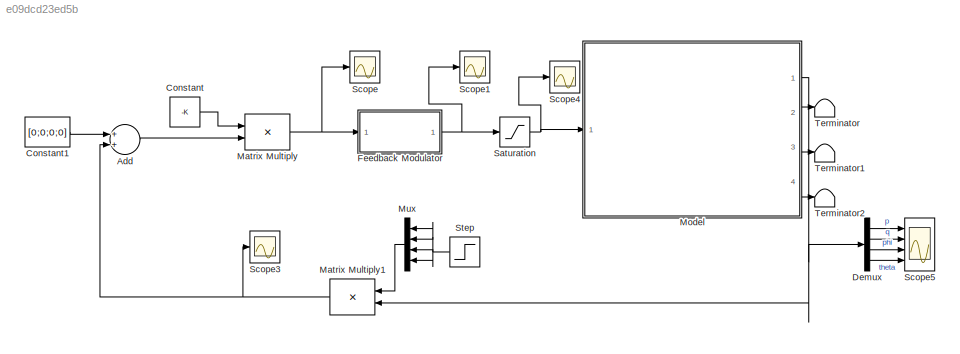
MODEL slx_e09dcd23ed5b
KIND model
CONFIG AbsTol = auto
CONFIG EnableMultiTasking = off
CONFIG FixedStep = auto
CONFIG MaxStep = auto
CONFIG MinStep = auto
CONFIG RelTol = 1e-3
CONFIG SampleTimeConstraint = Unconstrained
CONFIG Solver = VariableStepAuto
CONFIG SolverName = VariableStepAuto
CONFIG StartTime = 0.0
CONFIG StopTime = 30
BLOCK [Sum] Add
  InputSameDT = off
  OutDataTypeStr = Inherit: Inherit via internal rule
  Ports = [2, 1]
  SaturateOnIntegerOverflow = off
BLOCK [Constant] Constant
  Value = -K
BLOCK [Constant] Constant1
  Value = [0;0;0;0]
BLOCK [Demux] Demux
  DisplayOption = bar
  Ports = [1, 4]
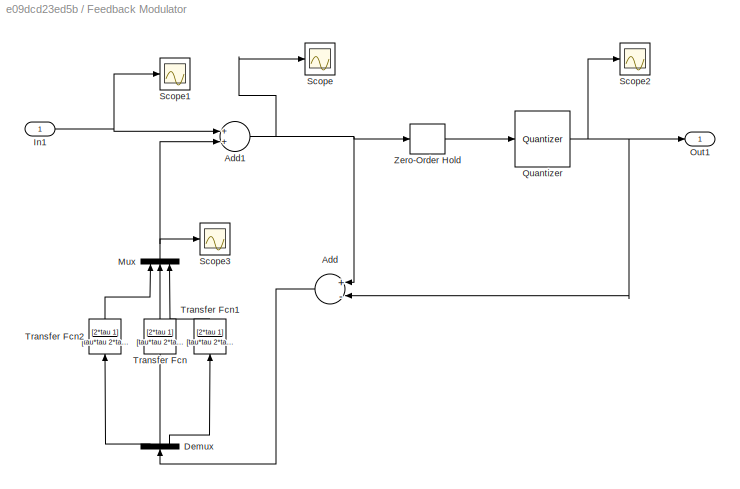
BLOCK [SubSystem] Feedback Modulator
  Ports = [1, 1]
  RequestExecContextInheritance = off
BLOCK [Sum] Feedback Modulator/Add
  InputSameDT = off
  Inputs = +-
  OutDataTypeStr = Inherit: Inherit via internal rule
  Ports = [2, 1]
  SaturateOnIntegerOverflow = off
BLOCK [Sum] Feedback Modulator/Add1
  InputSameDT = off
  OutDataTypeStr = Inherit: Inherit via internal rule
  Ports = [2, 1]
  SaturateOnIntegerOverflow = off
BLOCK [Demux] Feedback Modulator/Demux
  DisplayOption = bar
  Outputs = 3
  Ports = [1, 3]
BLOCK [Inport] Feedback Modulator/In1
  IconDisplay = Port number
BLOCK [Mux] Feedback Modulator/Mux
  DisplayOption = bar
  Inputs = 3
  Ports = [3, 1]
BLOCK [Outport] Feedback Modulator/Out1
  IconDisplay = Port number
BLOCK [Quantizer] Feedback Modulator/Quantizer
  QuantizationInterval = d
BLOCK [Scope] Feedback Modulator/Scope
  Floating = off
  NumInputPorts = 1
  Ports = [1]
  ScopeSpecificationString = Simulink.scopes.TimeScopeBlockCfg('CurrentConfiguration', extmgr.ConfigurationSet(extmgr.Configuration('Core','General UI',true),extmgr.Configuration('Core','Source UI',true),extmgr.Configuration('Sources','WiredSimulink',true,'DataLoggingVariableName','ScopeData5'),extmgr.Configuration('Visuals','Time Domain',true,'SerializedDisplays',{struct('MinYLimReal','-61.82526','MaxYLimReal','60.36466','YL...<+1442ch>
BLOCK [Scope] Feedback Modulator/Scope1
  Floating = off
  NumInputPorts = 1
  Ports = [1]
  ScopeSpecificationString = Simulink.scopes.TimeScopeBlockCfg('CurrentConfiguration', extmgr.ConfigurationSet(extmgr.Configuration('Core','General UI',true),extmgr.Configuration('Core','Source UI',true),extmgr.Configuration('Sources','WiredSimulink',true,'DataLoggingVariableName','ScopeData6'),extmgr.Configuration('Visuals','Time Domain',true,'SerializedDisplays',{struct('MinYLimReal','-44.53265','MaxYLimReal','58.44326','YL...<+1416ch>
BLOCK [Scope] Feedback Modulator/Scope2
  Floating = off
  NumInputPorts = 1
  Ports = [1]
  ScopeSpecificationString = Simulink.scopes.TimeScopeBlockCfg('CurrentConfiguration', extmgr.ConfigurationSet(extmgr.Configuration('Core','General UI',true),extmgr.Configuration('Core','Source UI',true),extmgr.Configuration('Sources','WiredSimulink',true,'DataLoggingVariableName','ScopeData7'),extmgr.Configuration('Visuals','Time Domain',true,'SerializedDisplays',{struct('MinYLimReal','-100.00000','MaxYLimReal','100.00000','...<+1440ch>
BLOCK [Scope] Feedback Modulator/Scope3
  Floating = off
  NumInputPorts = 1
  Ports = [1]
  ScopeSpecificationString = Simulink.scopes.TimeScopeBlockCfg('CurrentConfiguration', extmgr.ConfigurationSet(extmgr.Configuration('Core','General UI',true),extmgr.Configuration('Core','Source UI',true),extmgr.Configuration('Sources','WiredSimulink',true,'DataLoggingVariableName','ScopeData8'),extmgr.Configuration('Visuals','Time Domain',true,'SerializedDisplays',{struct('MinYLimReal','-0.00715','MaxYLimReal','0.00991','YLab...<+1451ch>
BLOCK [TransferFcn] Feedback Modulator/Transfer Fcn
  Denominator = [tau*tau 2*tau 1]
  Numerator = [2*tau 1]
BLOCK [TransferFcn] Feedback Modulator/Transfer Fcn1
  Denominator = [tau*tau 2*tau 1]
  Numerator = [2*tau 1]
BLOCK [TransferFcn] Feedback Modulator/Transfer Fcn2
  Denominator = [tau*tau 2*tau 1]
  Numerator = [2*tau 1]
BLOCK [ZeroOrderHold] Feedback Modulator/Zero-Order Hold
  SampleTime = h
BLOCK [Product] Matrix Multiply
  InputSameDT = off
  Multiplication = Matrix(*)
  OutDataTypeStr = Inherit: Inherit via internal rule
  Ports = [2, 1]
  RndMeth = Floor
  SaturateOnIntegerOverflow = off
BLOCK [Product] Matrix Multiply1
  InputSameDT = off
  OutDataTypeStr = Inherit: Inherit via internal rule
  Ports = [2, 1]
  RndMeth = Floor
  SaturateOnIntegerOverflow = off
BLOCK [ModelReference] Model
  ModelNameDialog = PendulumRCSPlant
  ModelReferenceVersion = 1.183
  Ports = [1, 4]
BLOCK [Mux] Mux
  DisplayOption = bar
  Ports = [4, 1]
BLOCK [Saturate] Saturation
  InputPortMap = u0
  LowerLimit = -d
  Ports = [1, 1]
  UpperLimit = d
BLOCK [Scope] Scope
  Floating = off
  NumInputPorts = 1
  Ports = [1]
  ScopeSpecificationString = Simulink.scopes.TimeScopeBlockCfg('CurrentConfiguration', extmgr.ConfigurationSet(extmgr.Configuration('Core','General UI',true),extmgr.Configuration('Core','Source UI',true),extmgr.Configuration('Sources','WiredSimulink',true),extmgr.Configuration('Visuals','Time Domain',true,'SerializedDisplays',{struct('MinYLimReal','-96.84619','MaxYLimReal','89.46231','YLabelReal','','MinYLimMag','0.00000','Ma...<+1412ch>
BLOCK [Scope] Scope1
  Floating = off
  NumInputPorts = 1
  Ports = [1]
  ScopeSpecificationString = Simulink.scopes.TimeScopeBlockCfg('CurrentConfiguration', extmgr.ConfigurationSet(extmgr.Configuration('Core','General UI',true),extmgr.Configuration('Core','Source UI',true),extmgr.Configuration('Sources','WiredSimulink',true,'DataLoggingVariableName','ScopeData1'),extmgr.Configuration('Visuals','Time Domain',true,'SerializedDisplays',{struct('MinYLimReal','-200.00000','MaxYLimReal','200.00000','...<+1437ch>
BLOCK [Scope] Scope3
  Floating = off
  NumInputPorts = 1
  Ports = [1]
  ScopeSpecificationString = Simulink.scopes.TimeScopeBlockCfg('CurrentConfiguration', extmgr.ConfigurationSet(extmgr.Configuration('Core','General UI',true),extmgr.Configuration('Core','Source UI',true),extmgr.Configuration('Sources','WiredSimulink',true,'DataLoggingVariableName','ScopeData3'),extmgr.Configuration('Visuals','Time Domain',true,'SerializedDisplays',{struct('MinYLimReal','-2.85467','MaxYLimReal','2.618','YLabel...<+1482ch>
BLOCK [Scope] Scope4
  Floating = off
  NumInputPorts = 1
  Ports = [1]
  ScopeSpecificationString = Simulink.scopes.TimeScopeBlockCfg('CurrentConfiguration', extmgr.ConfigurationSet(extmgr.Configuration('Core','General UI',true),extmgr.Configuration('Core','Source UI',true),extmgr.Configuration('Sources','WiredSimulink',true,'DataLoggingVariableName','ScopeData4'),extmgr.Configuration('Visuals','Time Domain',true,'SerializedDisplays',{struct('MinYLimReal','-100.00000','MaxYLimReal','100.00000','...<+1439ch>
BLOCK [Scope] Scope5
  Floating = off
  NumInputPorts = 4
  Ports = [4]
  ScopeSpecificationString = Simulink.scopes.TimeScopeBlockCfg('CurrentConfiguration', extmgr.ConfigurationSet(extmgr.Configuration('Core','General UI',true),extmgr.Configuration('Core','Source UI',true),extmgr.Configuration('Sources','WiredSimulink',true,'DataLoggingVariableName','ScopeData9'),extmgr.Configuration('Visuals','Time Domain',true,'SerializedDisplays',{struct('MinYLimReal','-2.01846','MaxYLimReal','2.29743','YLab...<+3433ch>
BLOCK [Step] Step
  SampleTime = 0
  Time = 5
BLOCK [Terminator] Terminator
BLOCK [Terminator] Terminator1
BLOCK [Terminator] Terminator2
LINE Add:1 -> Matrix Multiply:2
LINE Constant1:1 -> Add:1
LINE Constant:1 -> Matrix Multiply:1
LINE Demux:1 -> Scope5:1
LINE Demux:2 -> Scope5:2
LINE Demux:3 -> Scope5:3
LINE Demux:4 -> Scope5:4
NET Feedback Modulator/Add1:1 -> Feedback Modulator/Add:1, Feedback Modulator/Scope:1, Feedback Modulator/Zero-Order Hold:1
LINE Feedback Modulator/Add:1 -> Feedback Modulator/Demux:1
LINE Feedback Modulator/Demux:1 -> Feedback Modulator/Transfer Fcn2:1
LINE Feedback Modulator/Demux:2 -> Feedback Modulator/Transfer Fcn:1
LINE Feedback Modulator/Demux:3 -> Feedback Modulator/Transfer Fcn1:1
NET Feedback Modulator/In1:1 -> Feedback Modulator/Add1:1, Feedback Modulator/Scope1:1
NET Feedback Modulator/Mux:1 -> Feedback Modulator/Add1:2, Feedback Modulator/Scope3:1
NET Feedback Modulator/Quantizer:1 -> Feedback Modulator/Add:2, Feedback Modulator/Out1:1, Feedback Modulator/Scope2:1
LINE Feedback Modulator/Transfer Fcn1:1 -> Feedback Modulator/Mux:3
LINE Feedback Modulator/Transfer Fcn2:1 -> Feedback Modulator/Mux:1
LINE Feedback Modulator/Transfer Fcn:1 -> Feedback Modulator/Mux:2
LINE Feedback Modulator/Zero-Order Hold:1 -> Feedback Modulator/Quantizer:1
NET Feedback Modulator:1 -> Saturation:1, Scope1:1
NET Matrix Multiply1:1 -> Add:2, Scope3:1
NET Matrix Multiply:1 -> Feedback Modulator:1, Scope:1
NET Model:1 -> Demux:1, Matrix Multiply1:2
LINE Model:2 -> Terminator:1
LINE Model:3 -> Terminator1:1
LINE Model:4 -> Terminator2:1
LINE Mux:1 -> Matrix Multiply1:1
NET Saturation:1 -> Model:1, Scope4:1
NET Step:1 -> Mux:1, Mux:2, Mux:3, Mux:4
note: NET lines group one-source signal fan-out (src -> all destinations, sorted); 1:1 wires keep LINE
